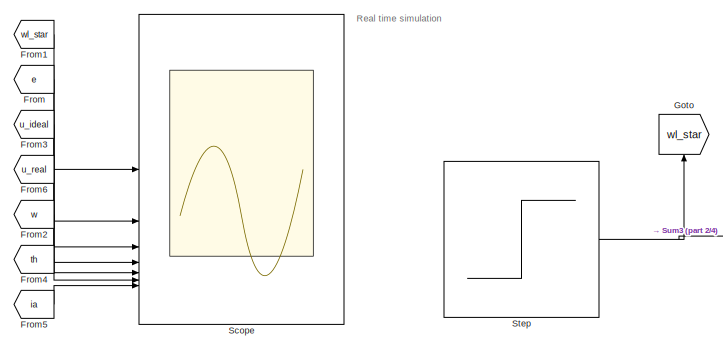
[diagram: root canvas - part 1/4, top left region]
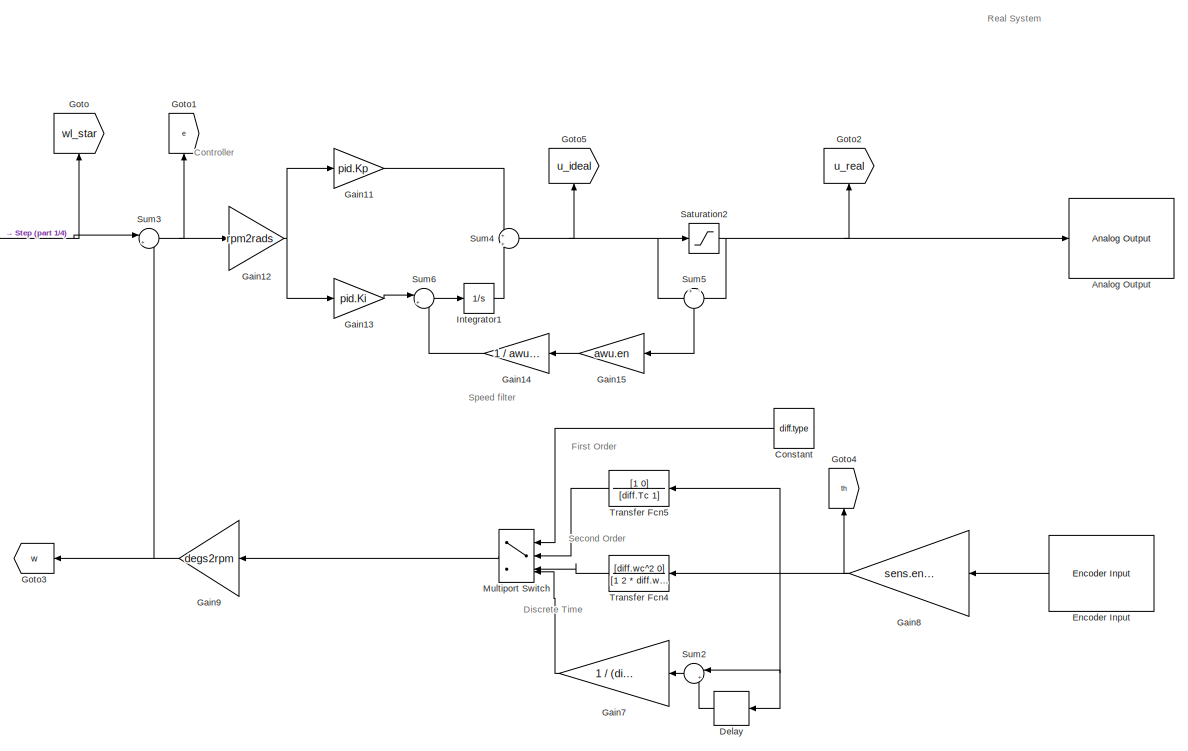
[diagram: root canvas - part 2/4, top center region]
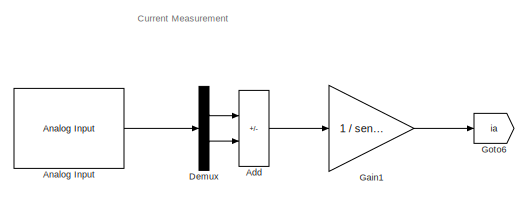
[diagram: root canvas - part 3/4, top right region]
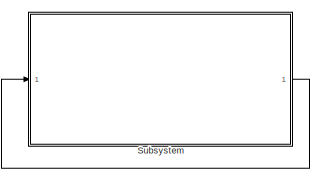
[diagram: root canvas - part 4/4, bottom center region]
MODEL slx_a1d1aa3acc4e
KIND model
CONFIG AbsTol = auto
CONFIG EnableMultiTasking = off
CONFIG FixedStep = 0.001
CONFIG MaxStep = 0.0001
CONFIG MinStep = auto
CONFIG RelTol = 1e-3
CONFIG SampleTimeConstraint = Unconstrained
CONFIG SolverName = ode3
CONFIG StartTime = 0.0
CONFIG StopTime = 10
BLOCK [Sum] Add
  IconShape = rectangular
  Inputs = +-
BLOCK [Reference] Analog Input  REF=sldrtlib/Analog Input
  AttributesFormatString = National Instruments\nPCIe-6321 [auto]
  SourceBlock = sldrtlib/Analog Input
  SourceType = Simulink Desktop Real-Time Analog Input
BLOCK [Reference] Analog Output  REF=sldrtlib/Analog Output
  AttributesFormatString = National Instruments\nPCIe-6321 [auto]
  SourceBlock = sldrtlib/Analog Output
  SourceType = Simulink Desktop Real-Time Analog Output
BLOCK [Constant] Constant
  Value = diff.type
BLOCK [Delay] Delay
  DelayLength = diff.N
  InputPortMap = u0
BLOCK [Demux] Demux
  Outputs = 2
BLOCK [Reference] Encoder Input  REF=sldrtlib/Encoder Input
  AttributesFormatString = National Instruments\nPCIe-6321 [auto]
  SourceBlock = sldrtlib/Encoder Input
  SourceType = Simulink Desktop Real-Time Encoder Input
BLOCK [From] From
  GotoTag = e
BLOCK [From] From1
  GotoTag = wl_star
BLOCK [From] From2
  GotoTag = w
BLOCK [From] From3
  GotoTag = u_ideal
BLOCK [From] From4
  GotoTag = th
BLOCK [From] From5
  GotoTag = ia
BLOCK [From] From6
  GotoTag = u_real
BLOCK [Gain] Gain1
  Gain = 1 / sens.curr.Rs
BLOCK [Gain] Gain11
  Gain = pid.Kp
BLOCK [Gain] Gain12
  Gain = rpm2rads
BLOCK [Gain] Gain13
  Gain = pid.Ki
BLOCK [Gain] Gain14
  Gain = 1 / awu.Tw
BLOCK [Gain] Gain15
  Gain = awu.en
BLOCK [Gain] Gain7
  Gain = 1 / (diff.Ts * diff.N)
BLOCK [Gain] Gain8
  Gain = sens.enc.pulse2deg
BLOCK [Gain] Gain9
  Gain = degs2rpm
BLOCK [Goto] Goto
  GotoTag = wl_star
  NameLocation = right
BLOCK [Goto] Goto1
  GotoTag = e
  NameLocation = right
BLOCK [Goto] Goto2
  GotoTag = u_real
  NameLocation = right
BLOCK [Goto] Goto3
  GotoTag = w
BLOCK [Goto] Goto4
  GotoTag = th
  NameLocation = right
BLOCK [Goto] Goto5
  GotoTag = u_ideal
  NameLocation = right
BLOCK [Goto] Goto6
  GotoTag = ia
BLOCK [Integrator] Integrator1
BLOCK [MultiPortSwitch] Multiport Switch
  InputSameDT = off
  SaturateOnIntegerOverflow = off
BLOCK [Saturate] Saturation2
  LowerLimit = -dac.V
  UpperLimit = dac.V
BLOCK [Scope] Scope
  Floating = off
  NumInputPorts = 7
  ScopeSpecificationString = Simulink.scopes.TimeScopeBlockCfg('CurrentConfiguration', extmgr.ConfigurationSet(extmgr.Configuration('Core','General UI',true),extmgr.Configuration('Core','Source UI',true),extmgr.Configuration('Sources','WiredSimulink',true,'DataLogging',true,'DataLoggingSaveFormat','StructureWithTime','DataLoggingVariableName','step_awu'),extmgr.Configuration('Visuals','Time Domain',true,'SerializedDisplays',{...<+6257ch>
BLOCK [Step] Step
  After = step.A
  SampleTime = 0
  Time = step.T
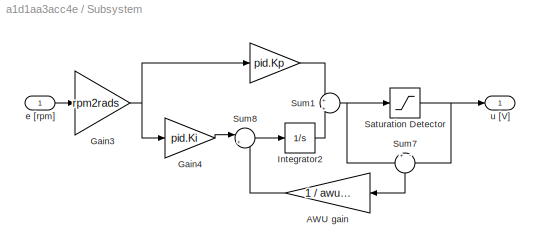
BLOCK [SubSystem] Subsystem
BLOCK [Gain] Subsystem/ 
  Gain = pid.Kp
BLOCK [Gain] Subsystem/AWU gain
  Gain = 1 / awu.Tw
BLOCK [Gain] Subsystem/Gain3
  Gain = rpm2rads
BLOCK [Gain] Subsystem/Gain4
  Gain = pid.Ki
BLOCK [Integrator] Subsystem/Integrator2
BLOCK [Saturate] Subsystem/Saturation Detector
  LowerLimit = -dac.V
  UpperLimit = dac.V
BLOCK [Sum] Subsystem/Sum1
  Inputs = +|+
BLOCK [Sum] Subsystem/Sum7
  Inputs = +|-
  NameLocation = left
BLOCK [Sum] Subsystem/Sum8
  Inputs = |+-
BLOCK [Inport] Subsystem/e [rpm]
BLOCK [Outport] Subsystem/u [V]
BLOCK [Sum] Sum2
  Inputs = |+-
BLOCK [Sum] Sum3
  Inputs = |+-
BLOCK [Sum] Sum4
  Inputs = +|+
BLOCK [Sum] Sum5
  Inputs = +|-
  NameLocation = left
BLOCK [Sum] Sum6
  Inputs = |+-
BLOCK [TransferFcn] Transfer Fcn4
  Denominator = [1 2 * diff.wc * diff.d diff.wc^2]
  Numerator = [diff.wc^2 0]
BLOCK [TransferFcn] Transfer Fcn5
  Denominator = [diff.Tc 1]
  Numerator = [1 0]
ANNOTATION (root): Controller
ANNOTATION (root): Current Measurement
ANNOTATION (root): Discrete Time
ANNOTATION (root): First Order
ANNOTATION (root): Real System
ANNOTATION (root): Real time simulation
ANNOTATION (root): Second Order
ANNOTATION (root): Speed filter
LINE Add:1 -> Gain1:1
LINE Analog Input:1 -> Demux:1
LINE Constant:1 -> Multiport Switch:1
LINE Delay:1 -> Sum2:2
LINE Demux:1 -> Add:1
LINE Demux:2 -> Add:2
LINE Encoder Input:1 -> Gain8:1
LINE From1:1 -> Scope:1
LINE From2:1 -> Scope:5
LINE From3:1 -> Scope:3
LINE From4:1 -> Scope:6
LINE From5:1 -> Scope:7
LINE From6:1 -> Scope:4
LINE From:1 -> Scope:2
LINE Gain11:1 -> Sum4:1
NET Gain12:1 -> Gain11:1, Gain13:1
LINE Gain13:1 -> Sum6:1
LINE Gain14:1 -> Sum6:2
LINE Gain15:1 -> Gain14:1
LINE Gain1:1 -> Goto6:1
LINE Gain7:1 -> Multiport Switch:4
NET Gain8:1 -> Delay:1, Goto4:1, Sum2:1, Transfer Fcn4:1, Transfer Fcn5:1
NET Gain9:1 -> Goto3:1, Sum3:2
LINE Integrator1:1 -> Sum4:2
LINE Multiport Switch:1 -> Gain9:1
NET Saturation2:1 -> Analog Output:1, Goto2:1, Sum5:2
NET Step:1 -> Goto:1, Sum3:1
LINE Subsystem/ :1 -> Subsystem/Sum1:1
LINE Subsystem/AWU gain:1 -> Subsystem/Sum8:2
NET Subsystem/Gain3:1 -> Subsystem/ :1, Subsystem/Gain4:1
LINE Subsystem/Gain4:1 -> Subsystem/Sum8:1
LINE Subsystem/Integrator2:1 -> Subsystem/Sum1:2
NET Subsystem/Saturation Detector:1 -> Subsystem/Sum7:2, Subsystem/u [V]:1
NET Subsystem/Sum1:1 -> Subsystem/Saturation Detector:1, Subsystem/Sum7:1
LINE Subsystem/Sum7:1 -> Subsystem/AWU gain:1
LINE Subsystem/Sum8:1 -> Subsystem/Integrator2:1
LINE Subsystem/e [rpm]:1 -> Subsystem/Gain3:1
LINE Subsystem:1 -> Subsystem:1
LINE Sum2:1 -> Gain7:1
NET Sum3:1 -> Gain12:1, Goto1:1
NET Sum4:1 -> Goto5:1, Saturation2:1, Sum5:1
LINE Sum5:1 -> Gain15:1
LINE Sum6:1 -> Integrator1:1
LINE Transfer Fcn4:1 -> Multiport Switch:3
LINE Transfer Fcn5:1 -> Multiport Switch:2
note: NET lines group one-source signal fan-out (src -> all destinations, sorted); 1:1 wires keep LINE
